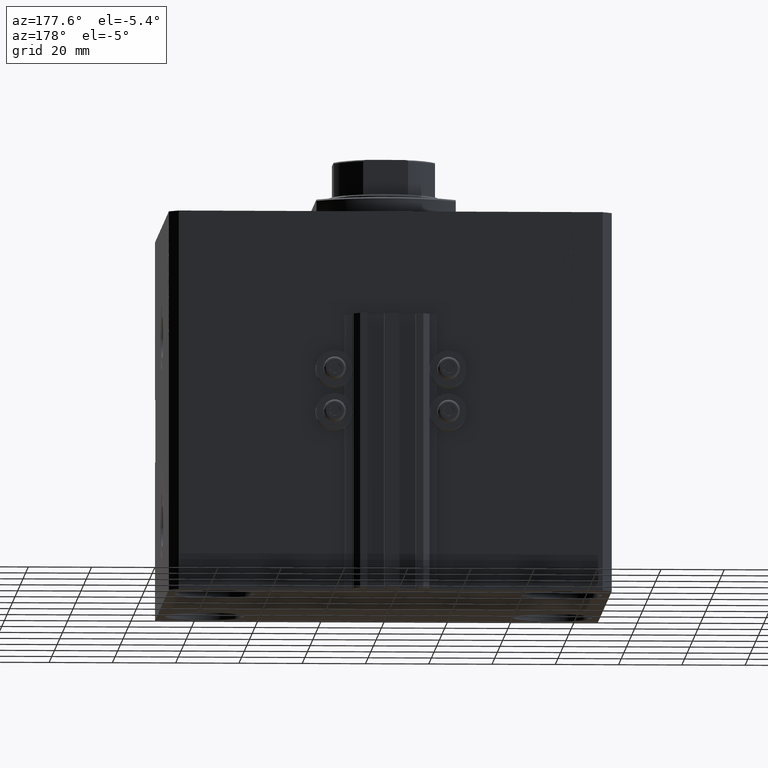
[diagram: clean part render]
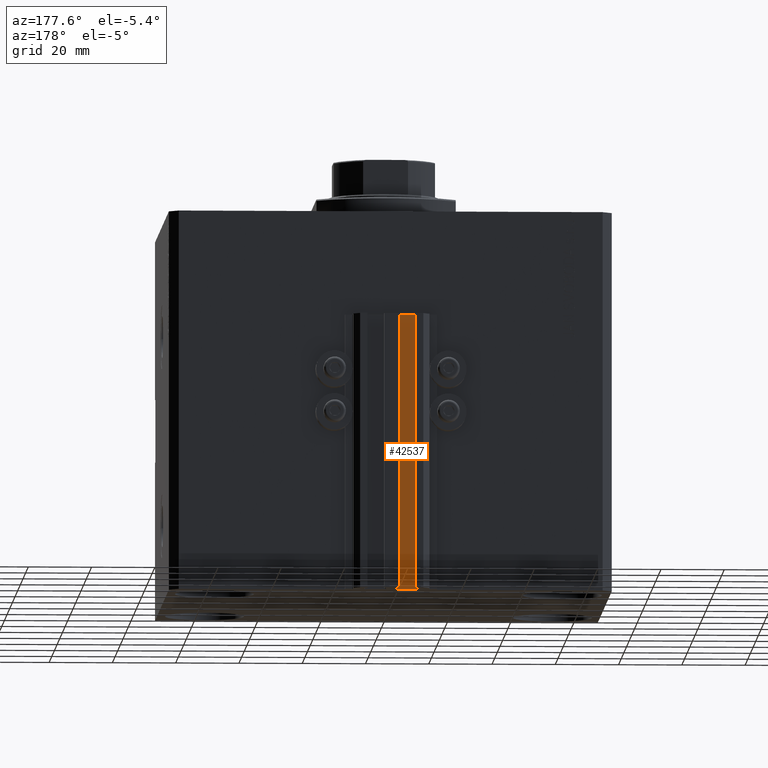
[diagram: same view with one face highlighted and labeled with its STEP entity id]
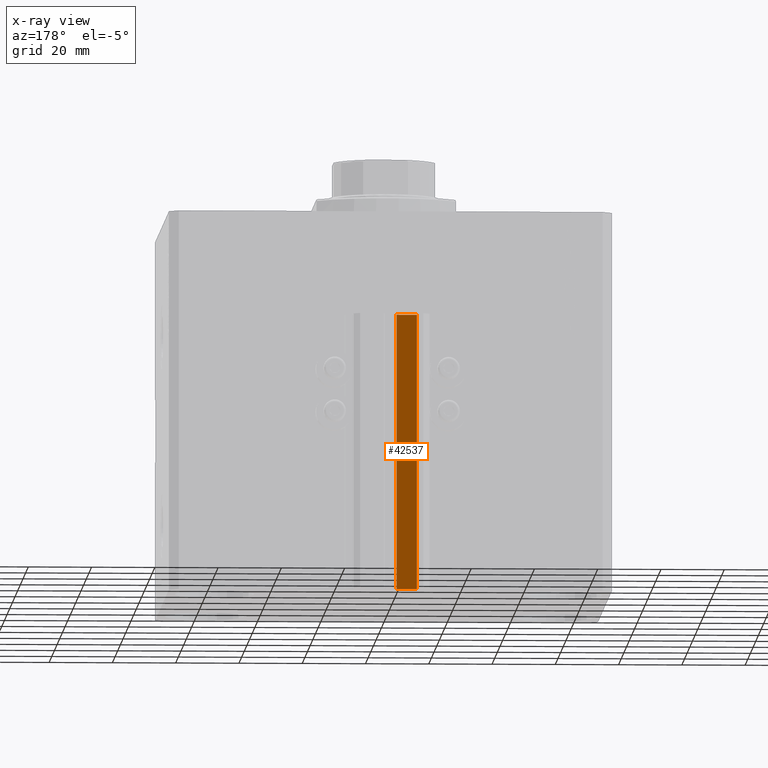
[diagram: x-ray of the same camera — body ghosted, the highlighted face saturated]
A machine part, auxiliary view. The second image highlights one B-rep face of the part: STEP entity #42537.
The next image is the same camera in x-ray: the body ghosted, the highlighted face saturated — about 0% of this face is hidden behind the body in this view.
In plain terms, the highlighted planar face has unit normal (0, 1, 0).
Its self-contained STEP definition (entity closure, byte-faithful):
#1358 = VECTOR ( 'NONE', #32164, 1000.000000000000000 ) ;
#1709 = CARTESIAN_POINT ( 'NONE',  ( -1.800000000000000933, 57.00000000000000000, -120.0000000000000000 ) ) ;
#2147 = DIRECTION ( 'NONE',  ( -1.000000000000000000, 0.000000000000000000, 0.000000000000000000 ) ) ;
#3562 = CARTESIAN_POINT ( 'NONE',  ( -8.199999999999997513, 57.00000000000000000, -33.00000000000000000 ) ) ;
#3767 = EDGE_LOOP ( 'NONE', ( #28337, #27653, #43683, #35166 ) ) ;
#5303 = LINE ( 'NONE', #38867, #24972 ) ;
#5832 = CARTESIAN_POINT ( 'NONE',  ( -1.800000000000000933, 57.00000000000000000, -120.0000000000000000 ) ) ;
#8552 = VECTOR ( 'NONE', #2147, 1000.000000000000000 ) ;
#8667 = VERTEX_POINT ( 'NONE', #28922 ) ;
#9500 = EDGE_CURVE ( 'NONE', #37415, #47804, #17124, .T. ) ;
#10448 = CARTESIAN_POINT ( 'NONE',  ( -1.800000000000000933, 57.00000000000000000, -33.00000000000000000 ) ) ;
#10497 = VERTEX_POINT ( 'NONE', #15146 ) ;
#12092 = DIRECTION ( 'NONE',  ( 0.000000000000000000, 0.000000000000000000, 1.000000000000000000 ) ) ;
#12481 = DIRECTION ( 'NONE',  ( 0.000000000000000000, 0.000000000000000000, 1.000000000000000000 ) ) ;
#12500 = EDGE_CURVE ( 'NONE', #10497, #8667, #24121, .T. ) ;
#15146 = CARTESIAN_POINT ( 'NONE',  ( -1.800000000000000933, 57.00000000000000000, -120.0000000000000000 ) ) ;
#17124 = LINE ( 'NONE', #10448, #1358 ) ;
#19491 = EDGE_CURVE ( 'NONE', #8667, #47804, #34856, .T. ) ;
#20219 = FACE_OUTER_BOUND ( 'NONE', #3767, .T. ) ;
#23615 = CARTESIAN_POINT ( 'NONE',  ( -1.800000000000000933, 57.00000000000000000, -33.00000000000000000 ) ) ;
#23656 = VECTOR ( 'NONE', #39048, 1000.000000000000000 ) ;
#24008 = CARTESIAN_POINT ( 'NONE',  ( -8.199999999999997513, 57.00000000000000000, -120.0000000000000000 ) ) ;
#24121 = LINE ( 'NONE', #5832, #8552 ) ;
#24972 = VECTOR ( 'NONE', #12481, 1000.000000000000000 ) ;
#27653 = ORIENTED_EDGE ( 'NONE', *, *, #41397, .F. ) ;
#28337 = ORIENTED_EDGE ( 'NONE', *, *, #9500, .F. ) ;
#28922 = CARTESIAN_POINT ( 'NONE',  ( -8.199999999999997513, 57.00000000000000000, -120.0000000000000000 ) ) ;
#31069 = DIRECTION ( 'NONE',  ( 0.000000000000000000, 1.000000000000000000, -0.000000000000000000 ) ) ;
#32164 = DIRECTION ( 'NONE',  ( -1.000000000000000000, 0.000000000000000000, 0.000000000000000000 ) ) ;
#34856 = LINE ( 'NONE', #24008, #23656 ) ;
#35166 = ORIENTED_EDGE ( 'NONE', *, *, #19491, .T. ) ;
#37415 = VERTEX_POINT ( 'NONE', #23615 ) ;
#38867 = CARTESIAN_POINT ( 'NONE',  ( -1.800000000000000933, 57.00000000000000000, -120.0000000000000000 ) ) ;
#39048 = DIRECTION ( 'NONE',  ( 0.000000000000000000, 0.000000000000000000, 1.000000000000000000 ) ) ;
#41397 = EDGE_CURVE ( 'NONE', #10497, #37415, #5303, .T. ) ;
#42437 = PLANE ( 'NONE',  #43153 ) ;
#42537 = ADVANCED_FACE ( 'NONE', ( #20219 ), #42437, .T. ) ;
#43153 = AXIS2_PLACEMENT_3D ( 'NONE', #1709, #31069, #12092 ) ;
#43683 = ORIENTED_EDGE ( 'NONE', *, *, #12500, .T. ) ;
#47804 = VERTEX_POINT ( 'NONE', #3562 ) ;